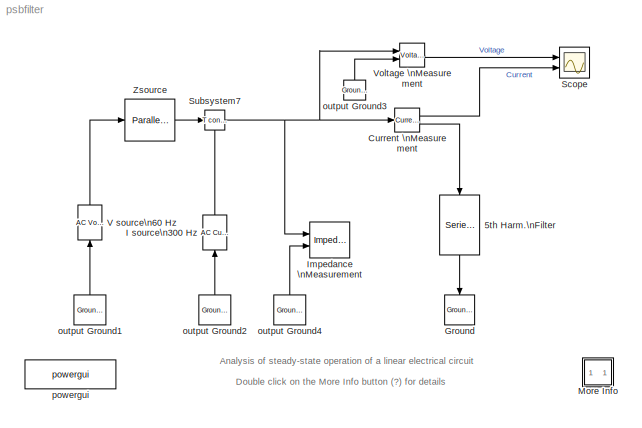
MODEL psbfilter
KIND model
BLOCK [Reference] 5th Harm.\nFilter  REF=powerlib2/Elements/Series RLC Branch
  PSBOutputType = 1
  Ports = [1, 1]
  SourceBlock = powerlib2/Elements/Series RLC Branch
  SourceType = Series RLC Branch
  Tag = PoWeRsYsTeMbLoCk
  a = 1.27
  b = 107.42e-03
  c = 2.62e-06
  mesure = None
BLOCK [Reference] Current \nMeasurement  REF=powerlib2/Measurements/Current Measurement
  OutputType = Magnitude
  PSBOutputType = 01
  PSBequivalent = 0
  PhasorSimulation = off
  Ports = [1, 2]
  SourceBlock = powerlib2/Measurements/Current Measurement
  SourceType = Current Measurement
  Tag = PoWeRsYsTeMmEaSuReMeNt
BLOCK [Reference] Ground  REF=powerlib2/Connectors/Ground (input)
  Ports = [1]
  SourceBlock = powerlib2/Connectors/Ground (input)
  SourceType = Ground
  Tag = PoWeRsYsTeMbLoCk
BLOCK [Reference] I source\n300 Hz  REF=powerlib2/Electrical\nSources/AC Current Source
  A = 10
  F = 300
  P = -30
  PSBOutputType = 1
  Ports = [1, 1]
  SourceBlock = powerlib2/Electrical\nSources/AC Current Source
  SourceType = AC Current Source
  Tag = PoWeRsYsTeMbLoCk
  mesure = None
  stime = 0
BLOCK [Reference] Impedance \nMeasurement  REF=powerlib2/Measurements/Impedance Measurement
  Ports = [2]
  SourceBlock = powerlib2/Measurements/Impedance Measurement
  SourceType = Impedance Measurement
  Tag = PoWeRsYsTeMbLoCk
  kz = 1
BLOCK [SubSystem] More Info
  MaskDisplay = disp('?')
  MaskIconFrame = on
  MaskIconOpaque = on
  MaskIconRotate = none
  MaskIconUnits = autoscale
  MinAlgLoopOccurrences = off
  Ports = []
  RTWSystemCode = Auto
  TreatAsAtomicUnit = off
BLOCK [Scope] Scope
  DataFormat = Array
  LimitDataPoints = off
  NumInputPorts = 2
  Ports = [2]
  TimeRange = 0.1
  YMax = 200~10
  YMin = -200~-10
BLOCK [Reference] Subsystem7  REF=powerlib2/Connectors/T connector
  PSBOutputType = 1
  Ports = [1, 1, 1]
  SourceBlock = powerlib2/Connectors/T connector
  SourceType = Bus Bar
  Tag = PoWeRsYsTeMbLoCk
BLOCK [Reference] V source\n60 Hz  REF=powerlib2/Electrical\nSources/AC Voltage Source
  A = 100
  F = 60
  P = 0
  PSBOutputType = 1
  Ports = [1, 1]
  SourceBlock = powerlib2/Electrical\nSources/AC Voltage Source
  SourceType = AC Voltage Source
  Tag = PoWeRsYsTeMbLoCk
  mesure = None
  stime = 0
BLOCK [Reference] Voltage \nMeasurement  REF=powerlib2/Measurements/Voltage Measurement
  OutputType = Magnitude
  PSBOutputType = 0
  PSBequivalent = 0
  PhasorSimulation = off
  Ports = [2, 1]
  SourceBlock = powerlib2/Measurements/Voltage Measurement
  SourceType = Voltage Measurement
  Tag = PoWeRsYsTeMmEaSuReMeNt
BLOCK [Reference] Zsource  REF=powerlib2/Elements/Parallel RLC Branch
  Description = {'sdasdsad';'dsadsa'}
  PSBOutputType = 1
  Ports = [1, 1]
  SourceBlock = powerlib2/Elements/Parallel RLC Branch
  SourceType = Parallel RLC Branch
  Tag = PoWeRsYsTeMbLoCk
  a = 37.7
  b = 10e-03
  c = 0
  mesure = None
BLOCK [Reference] output Ground1  REF=powerlib2/Connectors/Ground (output)
  PSBOutputType = 1
  Ports = [0, 1]
  SourceBlock = powerlib2/Connectors/Ground (output)
  SourceType = Ground
  Tag = PoWeRsYsTeMbLoCk
BLOCK [Reference] output Ground2  REF=powerlib2/Connectors/Ground (output)
  PSBOutputType = 1
  Ports = [0, 1]
  SourceBlock = powerlib2/Connectors/Ground (output)
  SourceType = Ground
  Tag = PoWeRsYsTeMbLoCk
BLOCK [Reference] output Ground3  REF=powerlib2/Connectors/Ground (output)
  PSBOutputType = 1
  Ports = [0, 1]
  SourceBlock = powerlib2/Connectors/Ground (output)
  SourceType = Ground
  Tag = PoWeRsYsTeMbLoCk
BLOCK [Reference] output Ground4  REF=powerlib2/Connectors/Ground (output)
  PSBOutputType = 1
  Ports = [0, 1]
  SourceBlock = powerlib2/Connectors/Ground (output)
  SourceType = Ground
  Tag = PoWeRsYsTeMbLoCk
BLOCK [Reference] powergui  REF=powerlib2/powergui
  DisplayStyle = off
  Frange = 0:2:1000
  FreqAxis = off
  MaxFrequency = 1000
  Ports = []
  RmsSteady = 1
  SourceBlock = powerlib2/powergui
  SourceType = PSB option menu block
  StartTime = 0.0
  Ts = 0
  Xlog = off
  Ylog = off
  ZoomFFT = on
  cycles = 1
  display = off
  echomessages = off
  frequency = 60
  frequencyindice = 1
  frequencyindicesteady = 1
  fundamental = 60
  methode = off
  save = off
  variable = ZData
ANNOTATION (root): Analysis of steady-state operation of a linear electrical circuit
ANNOTATION (root): Double click on the More Info button (?) for details
ANNOTATION More Info: 1
ANNOTATION More Info: 2
ANNOTATION More Info: 3
ANNOTATION More Info: A 5th harmonic filter is connected at a bus bar fed by a 60 Hz, 100 V inductive source. \nA 5th harmonic (300 Hz, 1 A) current is injected at the bus bar.\n\nThis linear system consists of 3 states (2 inductor currents and 1 capacitor voltage),\n 2 inputs (Vs, Is) and 2 outputs (Current and Voltage Measurement).\n\nAn Impedance Measurement block is used to compute the impedance versus frequency of...<+13ch>
ANNOTATION More Info: Circuit Description
ANNOTATION More Info: Demonstration
ANNOTATION More Info: G. Sybille (Hydro-Quebec)
ANNOTATION More Info: This demonstration illustrates use of the Powergui\nand Impedance Measurement blocks to analyze the\nsteady-state operation of a linear electrical circuit
ANNOTATION More Info: Use the Powergui block to find the steady-sate 60Hz and 300 Hz components of voltage and\ncurrent phasors. The values of the 3 states (phasors and initial values) can be also obtained \nfrom the powergui block.\n\nOpen the scope and start the simulation from the Simulation/Start menu.\nNotice that the simulation starts in steady-state.\n\nUsing the Powergui block, select Impedance vs Frequency Mea...<+322ch>
LINE 5th Harm.\nFilter:1 -> Ground:1
LINE Current \nMeasurement:1 -> Scope:2
LINE Current \nMeasurement:2 -> 5th Harm.\nFilter:1
LINE I source\n300 Hz:1 -> Subsystem7:enable
NET Subsystem7:1 -> Current \nMeasurement:1, Impedance \nMeasurement:1, Voltage \nMeasurement:1
LINE V source\n60 Hz:1 -> Zsource:1
LINE Voltage \nMeasurement:1 -> Scope:1
LINE Zsource:1 -> Subsystem7:1
LINE output Ground1:1 -> V source\n60 Hz:1
LINE output Ground2:1 -> I source\n300 Hz:1
LINE output Ground3:1 -> Voltage \nMeasurement:2
LINE output Ground4:1 -> Impedance \nMeasurement:2
note: NET lines group one-source signal fan-out (src -> all destinations, sorted); 1:1 wires keep LINE
